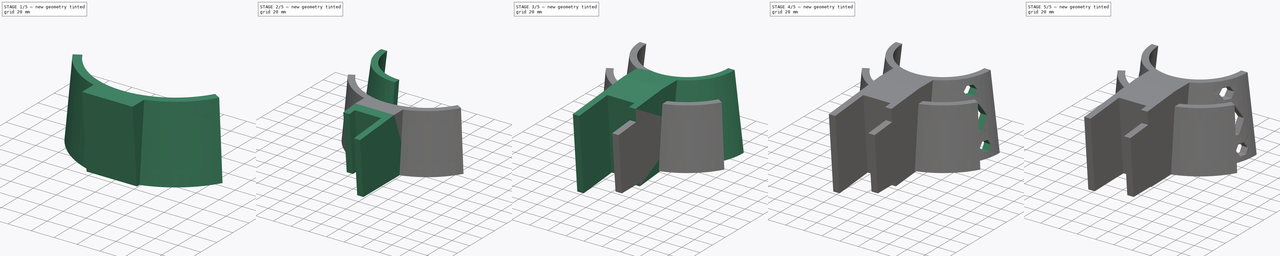
[diagram: build sequence overview — one tinted view per stage of 5, left to right]
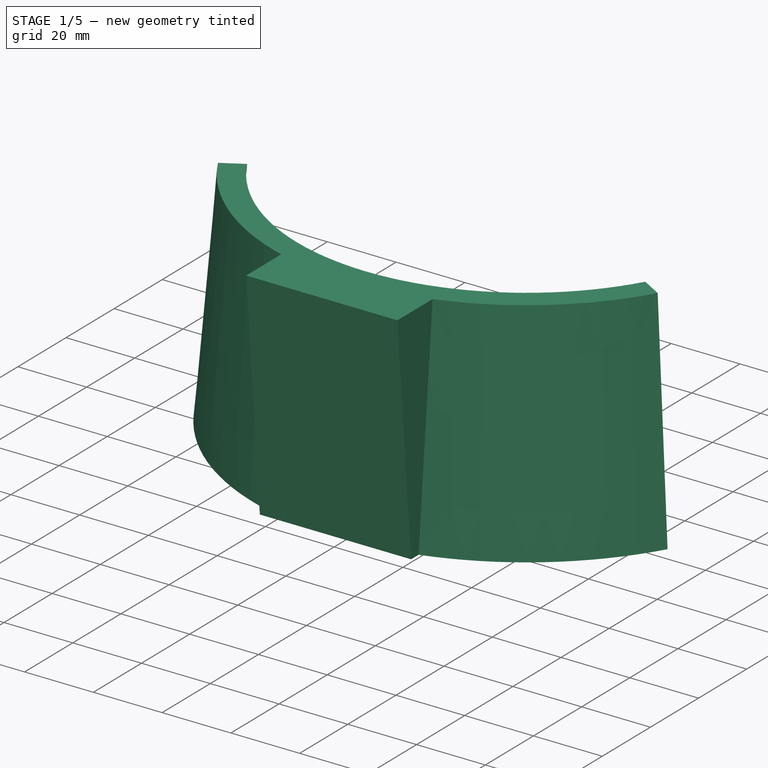
[diagram: stage 1 of 5 — iso view after this stage's code; geometry added in this stage tinted green]
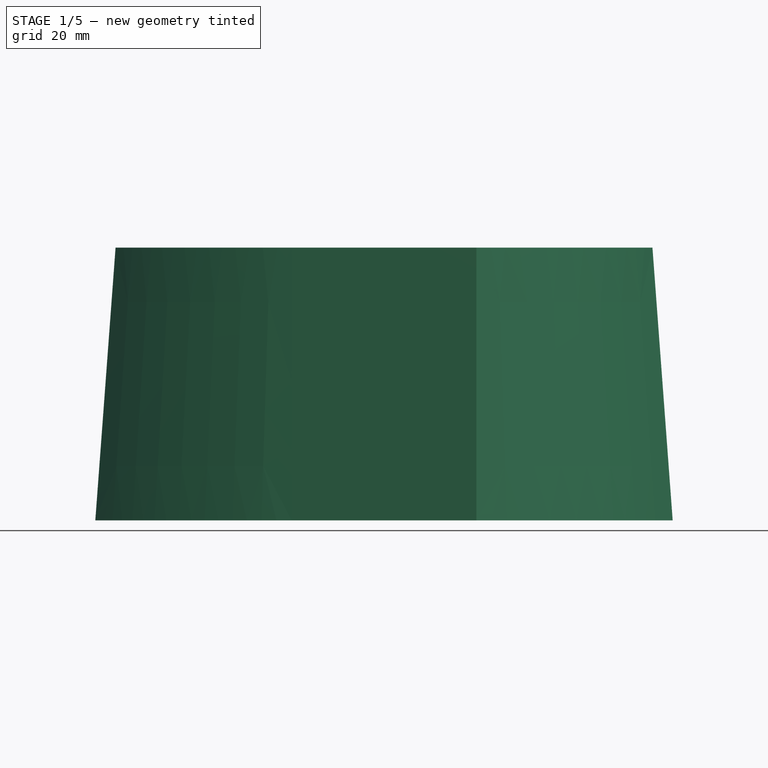
[diagram: stage 1 of 5 — front view after this stage's code; geometry added in this stage tinted green]
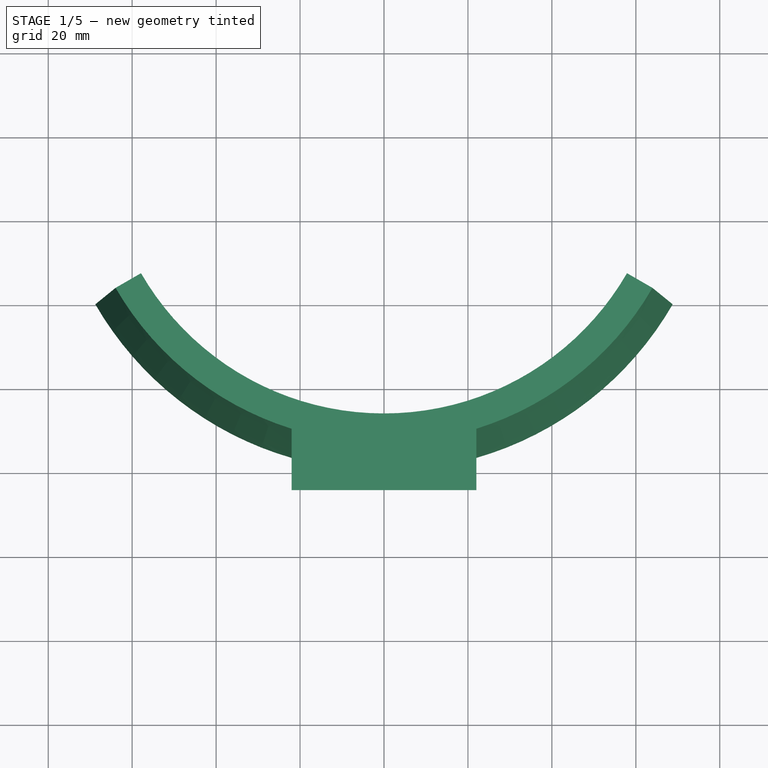
[diagram: stage 1 of 5 — top view after this stage's code; geometry added in this stage tinted green]
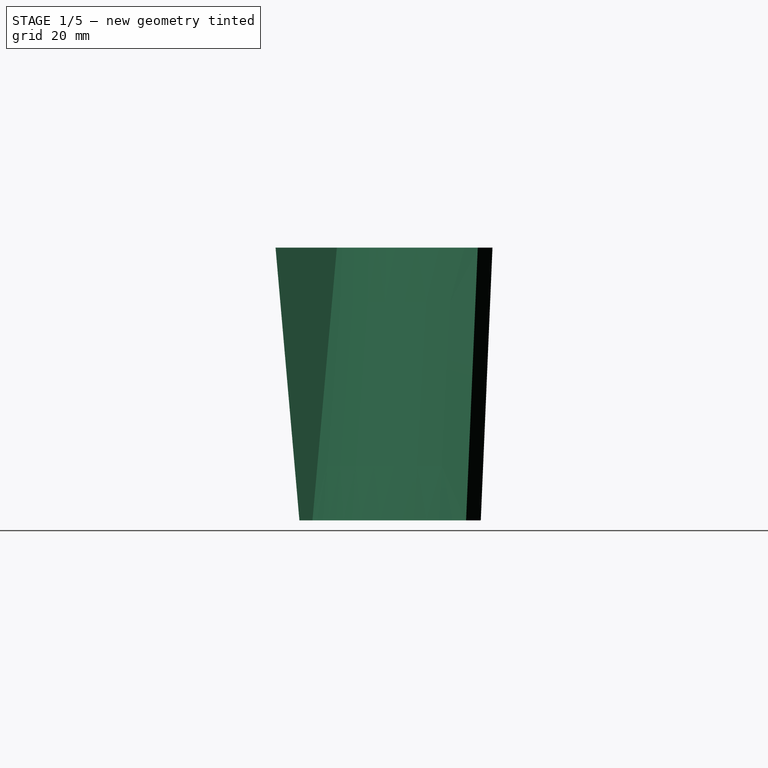
[diagram: stage 1 of 5 — right view after this stage's code; geometry added in this stage tinted green]
FCSTD DOCUMENT  (FreeCAD 1.0R39109 (Git))
Label: blahaj_holder
License: All rights reserved
LicenseURL: https://en.wikipedia.org/wiki/All_rights_reserved
objects: Sketcher::SketchObject×8, PartDesign::Pocket×8, PartDesign::Pad×6, PartDesign::Plane×5, PartDesign::Revolution×4, PartDesign::Fillet×3, PartDesign::Body×2, PartDesign::ShapeBinder×1
note: 87 computed .brp shape members not serialized (recipe doc carries the construction recipe); baked Part::Feature solids carry a one-line shape summary decoded from their .brp

FEATURE [Sketcher::SketchObject] Sketch004
  ArcFitTolerance = 1e-06
  AttachmentSupport = -> [YZ_Plane001]
  FullyConstrained = true
  MakeInternals = false
  MapMode = 5
  Placement = pos=(0,0,0) rot=(0.57735,0.57735,0.57735;2.0944rad)
  sketch-geometry (9):
    g0: LineSegment [constr] StartX=0 StartY=0 StartZ=0 EndX=0 EndY=65 EndZ=0
    g1: LineSegment [constr] StartX=0 StartY=65 StartZ=0 EndX=-66.85 EndY=65 EndZ=0
    g2: LineSegment [constr] StartX=0 StartY=0 StartZ=0 EndX=-72.42 EndY=0 EndZ=0
    g3: LineSegment StartX=-66.85 StartY=65 StartZ=0 EndX=-72.42 EndY=0 EndZ=0
    g4: LineSegment StartX=-72.42 StartY=0 StartZ=0 EndX=-79.42 EndY=0 EndZ=0
    g5: LineSegment StartX=-66.85 StartY=65 StartZ=0 EndX=-73.85 EndY=65 EndZ=0
    g6: LineSegment StartX=-73.85 StartY=65 StartZ=0 EndX=-79.42 EndY=0 EndZ=0
    g7: LineSegment StartX=-73.85 StartY=65 StartZ=0 EndX=-85.1068 EndY=65 EndZ=0
    g8: LineSegment StartX=-79.42 StartY=0 StartZ=0 EndX=-85.1068 EndY=65 EndZ=0
  constraints (24):
    c: Distance(g0) = 65
    c: Coincident(g0,g-1)
    c: PointOnObject(g0,g-2)
    c: Distance(g1) = 66.85
    c: Coincident(g1,g0)
    c: Horizontal(g1)
    c: Distance(g2) = 72.42
    c: Coincident(g2,g0)
    c: PointOnObject(g2,g-1)
    c: Coincident(g3,g1)
    c: Coincident(g3,g2)
    c: Distance(g4) = 7
    c: Coincident(g4,g2)
    c: PointOnObject(g4,g-1)
    c: Distance(g5) = 7
    c: Coincident(g5,g1)
    c: Horizontal(g5)
    c: Coincident(g6,g5)
    c: Coincident(g6,g4)
    c: Horizontal(g7)
    c: Coincident(g7,g5)
    c: Angle(g-1,g8) = 1.65806
    c: Coincident(g8,g4)
    c: Coincident(g7,g8)
FEATURE [PartDesign::Revolution] Revolution002
  Angle = 60
  Angle2 = 60
  Axis = (0,0,1)
  Base = (0,0,0)
  Placement = pos=(0,0,0) rot=(1,1,1;2.0944rad)
  Profile = -> Sketch004 [Edge6,Edge3,Edge1,Edge2]
  ReferenceAxis = -> Sketch004 [V_Axis]
  Refine = true
  Suppressed = false
  Type = 0
FEATURE [PartDesign::Revolution] Revolution003
  Angle = 60
  Angle2 = 60
  Axis = (0,0,1)
  Base = (0,0,0)
  BaseFeature = -> Revolution002
  Placement = pos=(0,0,0) rot=(1,1,1;2.0944rad)
  Profile = -> Sketch004 [Edge1,Edge6,Edge2,Edge3]
  ReferenceAxis = -> Sketch004 [V_Axis]
  Refine = true
  Reversed = true
  Suppressed = false
  Type = 0
FEATURE [PartDesign::Pad] Pad003
  BaseFeature = -> Revolution003
  Direction = (1,0,0)
  Length = 22
  Length2 = 10
  Placement = pos=(0,0,0) rot=(1,1,1;2.0944rad)
  Profile = -> Sketch004 [Edge1,Edge6,Edge5,Edge4,Edge2]
  ReferenceAxis = -> Sketch004 [N_Axis]
  Refine = true
  Suppressed = false
  Type = 0
FEATURE [PartDesign::Pad] Pad004
  BaseFeature = -> Pad003
  Direction = (1,0,0)
  Length = 22
  Length2 = 10
  Placement = pos=(0,0,0) rot=(1,1,1;2.0944rad)
  Profile = -> Sketch004 [Edge5,Edge4,Edge6,Edge1,Edge2]
  ReferenceAxis = -> Sketch004 [N_Axis]
  Refine = true
  Reversed = true
  Suppressed = false
  Type = 0
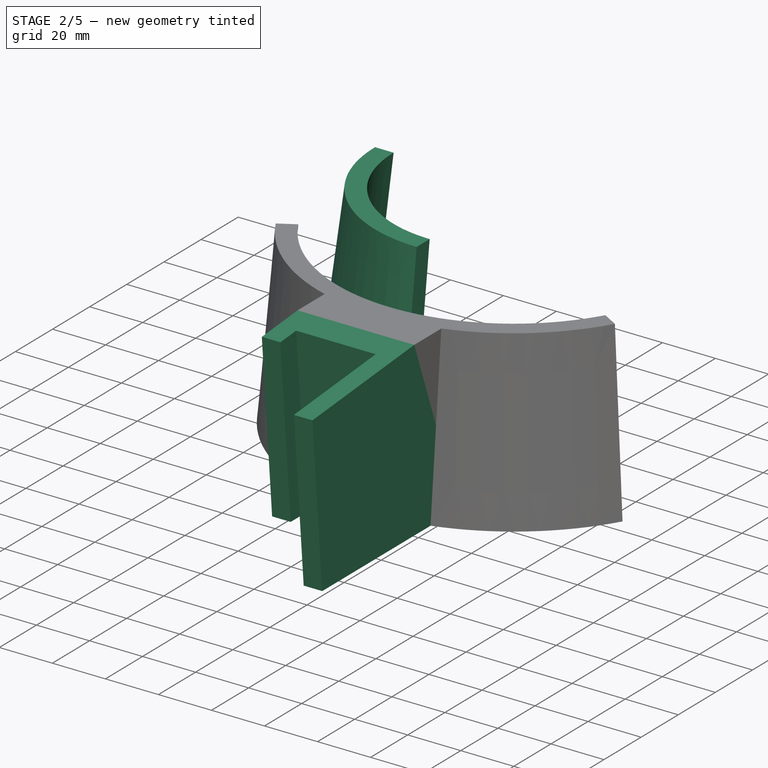
[diagram: stage 2 of 5 — iso view after this stage's code; geometry added in this stage tinted green]
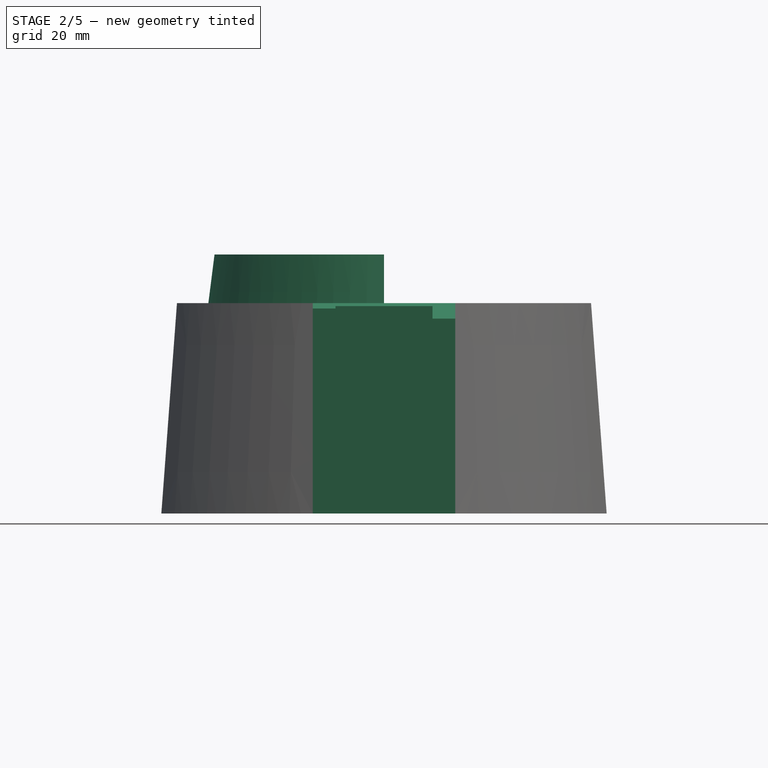
[diagram: stage 2 of 5 — front view after this stage's code; geometry added in this stage tinted green]
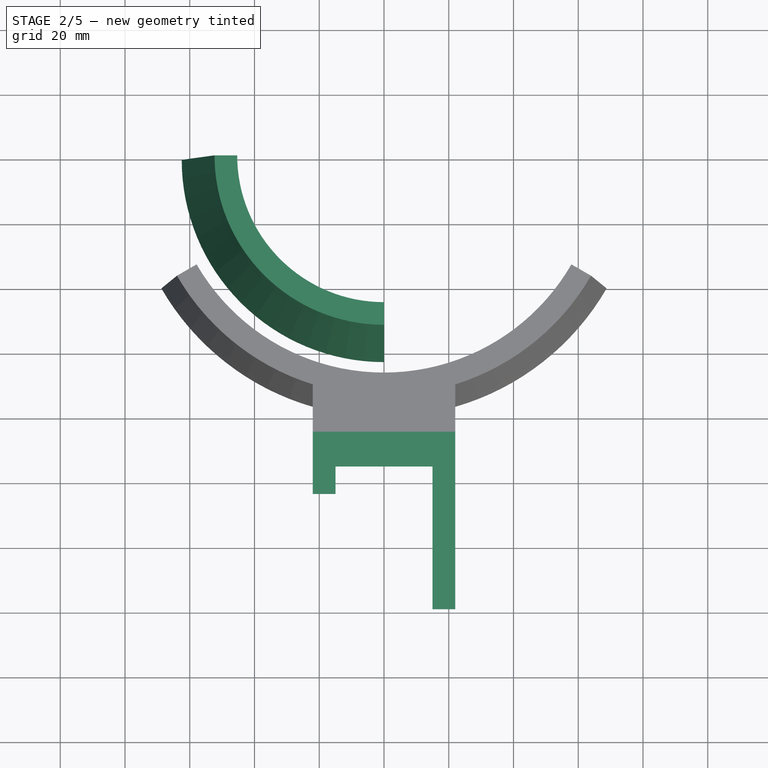
[diagram: stage 2 of 5 — top view after this stage's code; geometry added in this stage tinted green]
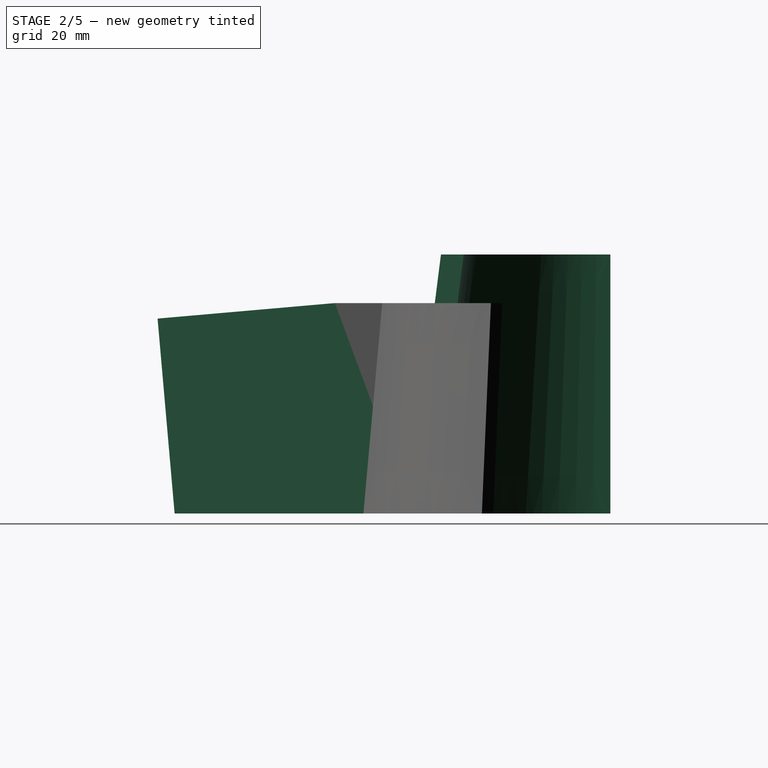
[diagram: stage 2 of 5 — right view after this stage's code; geometry added in this stage tinted green]
FEATURE [Sketcher::SketchObject] Sketch001
  ArcFitTolerance = 1e-06
  AttachmentSupport = -> [YZ_Plane]
  FullyConstrained = false
  MakeInternals = false
  MapMode = 5
  Placement = pos=(0,0,0) rot=(0.57735,0.57735,0.57735;2.0944rad)
  sketch-geometry (7):
    g0: LineSegment StartX=-45.3558 StartY=79.9996 StartZ=0 EndX=-55.4348 EndY=-5.85082e-05 EndZ=0
    g1: LineSegment [constr] StartX=0 StartY=0 StartZ=0 EndX=0 EndY=80 EndZ=0
    g2: LineSegment StartX=-55.4348 StartY=-5.85082e-05 StartZ=0 EndX=-62.49 EndY=-0.0018551 EndZ=0
    g3: LineSegment StartX=-52.3558 StartY=79.9996 StartZ=0 EndX=-45.3558 EndY=79.9996 EndZ=0
    g4: LineSegment StartX=-52.3558 StartY=79.9996 StartZ=0 EndX=-62.49 EndY=-0.0018551 EndZ=0
    g5: LineSegment StartX=-62.49 StartY=-0.0018551 StartZ=0 EndX=-69.4892 EndY=79.9996 EndZ=0
    g6: LineSegment StartX=-52.3558 StartY=79.9996 StartZ=0 EndX=-69.4892 EndY=79.9996 EndZ=0
  constraints (17):
    c: Distance(g-1,g0) = 55
    c: Distance(g1) = 80
    c: Coincident(g1,g-1)
    c: PointOnObject(g1,g-2)
    c: Distance(g1,g0) = 45
    c: Coincident(g0,g2)
    c: Coincident(g3,g0)
    c: Horizontal(g3)
    c: DistanceX(g3,g0) = 7
    c: Coincident(g4,g2)
    c: Coincident(g5,g2)
    c: Horizontal(g6)
    c: Coincident(g6,g3)
    c: DistanceX(g2,g-1) = 62.49
    c: Angle(g5,g-1) = 1.48353
    c: Coincident(g6,g5)
    c: Coincident(g3,g4)
FEATURE [PartDesign::Revolution] Revolution
  Angle = 90
  Angle2 = 60
  Axis = (0,0,1)
  Base = (0,0,0)
  Placement = pos=(0,0,0) rot=(1,1,1;2.0944rad)
  Profile = -> Sketch001 [Edge1,Edge3,Edge6,Edge2]
  ReferenceAxis = -> Sketch001 [V_Axis]
  Refine = true
  Reversed = true
  Suppressed = false
  Type = 0
FEATURE [PartDesign::Pad] Pad005
  BaseFeature = -> Pad004
  Direction = (-4e-16,-0.996195,-0.087156)
  Length = 55
  Length2 = 10
  Placement = pos=(0,0,0) rot=(1,1,1;2.0944rad)
  Profile = -> Pad004 [Face11]
  Refine = true
  Suppressed = false
  Type = 0
FEATURE [PartDesign::Plane] DatumPlane003
  AttachmentSupport = -> [Pad005]
  Length = 202.913
  MapMode = 5
  Placement = pos=(-1.88e-14,-6.29006,71.8956) rot=(0.043578,0.043578,-0.998099;1.5727rad)
  ResizeMode = 0
  Width = 168.578
FEATURE [Sketcher::SketchObject] Sketch005
  ArcFitTolerance = 1e-06
  AttachmentSupport = -> [Pad005]
  FullyConstrained = false
  MakeInternals = false
  MapMode = 5
  Placement = pos=(-1.88e-14,-6.29006,71.8956) rot=(0.043578,0.043578,-0.998099;1.5727rad)
  sketch-geometry (13):
    g0: LineSegment [constr] StartX=0 StartY=0 StartZ=0 EndX=208.347 EndY=0 EndZ=0
    g1: LineSegment [constr] StartX=89.9137 StartY=-22 StartZ=0 EndX=179.914 EndY=-22 EndZ=0
    g2: LineSegment [constr] StartX=179.914 StartY=-22 StartZ=0 EndX=179.914 EndY=22 EndZ=0
    g3: LineSegment [constr] StartX=179.914 StartY=22 StartZ=0 EndX=89.9137 EndY=22 EndZ=0
    g4: LineSegment [constr] StartX=89.9137 StartY=22 StartZ=0 EndX=89.9137 EndY=-22 EndZ=0
    g5: GeomPoint [constr] X=134.914 Y=0 Z=0
    g6: LineSegment StartX=89.9137 StartY=-15 StartZ=0 EndX=89.9137 EndY=15 EndZ=0
    g7: LineSegment StartX=89.9137 StartY=15 StartZ=0 EndX=134.914 EndY=15 EndZ=0
    g8: LineSegment StartX=134.914 StartY=15 StartZ=0 EndX=134.914 EndY=0 EndZ=0
    g9: LineSegment StartX=134.914 StartY=0 StartZ=0 EndX=134.914 EndY=-22 EndZ=0
    g10: LineSegment StartX=89.9137 StartY=-15 StartZ=0 EndX=98.4137 EndY=-15 EndZ=0
    g11: LineSegment StartX=98.4137 StartY=-15 StartZ=0 EndX=98.4137 EndY=-22 EndZ=0
    g12: LineSegment StartX=98.4137 StartY=-22 StartZ=0 EndX=134.914 EndY=-22 EndZ=0
  constraints (31):
    c: Horizontal(g0)
    c: Coincident(g0,g-1)
    c: Coincident(g1,g2)
    c: Coincident(g2,g3)
    c: Coincident(g3,g4)
    c: Coincident(g4,g1)
    c: Horizontal(g1)
    c: Horizontal(g3)
    c: Vertical(g2)
    c: Vertical(g4)
    c: Symmetric(g3,g1,g5)
    c: Distance(g2,g4) = 90
    c: Distance(g1,g3) = 44
    c: PointOnObject(g5,g0)
    c: PointOnObject(g6,g4)
    c: PointOnObject(g6,g4)
    c: Distance(g7) = 45
    c: Horizontal(g7)
    c: Coincident(g7,g6)
    c: Coincident(g8,g7)
    c: Coincident(g8,g5)
    c: Coincident(g9,g5)
    c: Symmetric(g1,g1,g9)
    c: Distance(g10) = 8.5
    c: Horizontal(g10)
    c: Coincident(g10,g6)
    c: Vertical(g11)
    c: Coincident(g11,g10)
    c: PointOnObject(g11,g1)
    c: Coincident(g12,g11)
    c: Coincident(g12,g9)
FEATURE [PartDesign::Pocket] Pocket006
  BaseFeature = -> Pad005
  Direction = (0,0.087156,-0.996195)
  Length = 66
  Length2 = 5
  Placement = pos=(0,0,0) rot=(1,1,1;2.0944rad)
  Profile = -> Sketch005 [Edge1,Edge7,Edge5,Vertex6,Edge6,Edge4,Edge3,Edge2]
  ReferenceAxis = -> Sketch005 [N_Axis]
  Refine = true
  Suppressed = false
  Type = 0
FEATURE [PartDesign::Plane] DatumPlane004
  AttachmentOffset = pos=(0,0,47) rot=(0,0,1;0rad)
  AttachmentSupport = -> [Pocket006]
  Length = 189.262
  MapMode = 5
  Placement = pos=(-69,1.37e-14,-1.57e-14) rot=(0.57735,0.57735,-0.57735;4.18879rad)
  ResizeMode = 0
  Width = 114.365
FEATURE [Sketcher::SketchObject] Sketch006
  ArcFitTolerance = 1e-06
  AttachmentSupport = -> [Pocket006]
  FullyConstrained = false
  MakeInternals = false
  MapMode = 5
  Placement = pos=(-22,1.37e-14,-1.57e-14) rot=(0.57735,0.57735,-0.57735;4.18879rad)
  sketch-geometry (4):
    g0: LineSegment StartX=0 StartY=0 StartZ=0 EndX=0 EndY=10.8511 EndZ=0
    g1: LineSegment StartX=0 StartY=10.8511 StartZ=0 EndX=-140.83 EndY=10.8511 EndZ=0
    g2: LineSegment StartX=-140.83 StartY=10.8511 StartZ=0 EndX=-140.83 EndY=0 EndZ=0
    g3: LineSegment StartX=-140.83 StartY=0 StartZ=0 EndX=0 EndY=0 EndZ=0
  constraints (9):
    c: Coincident(g0,g1)
    c: Coincident(g1,g2)
    c: Coincident(g2,g3)
    c: Coincident(g3,g0)
    c: Vertical(g0)
    c: Vertical(g2)
    c: Horizontal(g1)
    c: Horizontal(g3)
    c: Coincident(g0,g-1)
FEATURE [PartDesign::Pocket] Pocket007
  BaseFeature = -> Pocket006
  Direction = (1,0,0)
  Length = 100
  Length2 = 5
  Placement = pos=(0,0,0) rot=(1,1,1;2.0944rad)
  Profile = -> Sketch006
  ReferenceAxis = -> Sketch006 [N_Axis]
  Refine = true
  Suppressed = false
  Type = 0
FEATURE [PartDesign::Body] Body001  label="Belly_holder"
  AllowCompound = false
  Group = -> [Sketch004,Revolution002,Revolution003,Pad003,Pad004,Pad005,DatumPlane003,Sketch005,Pocket006,DatumPlane004,Sketch006,Pocket007]
  Origin = -> Origin001
  Tip = -> Pocket007
FEATURE [PartDesign::ShapeBinder] CopyPocket007
  Placement = pos=(0,0,0) rot=(0.57735,0.57735,0.57735;2.0944rad)
  TraceSupport = false
FEATURE [Sketcher::SketchObject] Sketch007
  ArcFitTolerance = 1e-06
  AttachmentSupport = -> [CopyPocket007]
  FullyConstrained = false
  MakeInternals = false
  MapMode = 5
  Placement = pos=(-1.73e-14,-89.5716,-7.83652) rot=(0.593426,0.593426,-0.543775;2.14549rad)
  sketch-geometry (7):
    g0: LineSegment StartX=-27.4069 StartY=44.6133 StartZ=0 EndX=-34.9069 EndY=57.6037 EndZ=0
    g1: LineSegment StartX=-34.9069 StartY=57.6037 StartZ=0 EndX=-49.9069 EndY=57.6037 EndZ=0
    g2: LineSegment StartX=-49.9069 StartY=57.6037 StartZ=0 EndX=-57.4069 EndY=44.6133 EndZ=0
    g3: LineSegment StartX=-57.4069 StartY=44.6133 StartZ=0 EndX=-49.9069 EndY=31.6229 EndZ=0
    g4: LineSegment StartX=-49.9069 StartY=31.6229 StartZ=0 EndX=-34.9069 EndY=31.6229 EndZ=0
    g5: LineSegment StartX=-34.9069 StartY=31.6229 StartZ=0 EndX=-27.4069 EndY=44.6133 EndZ=0
    g6: Circle [constr] CenterX=-42.4069 CenterY=44.6133 CenterZ=0 NormalX=0 NormalY=0 NormalZ=1 AngleXU=0 Radius=15
  constraints (14):
    c: Coincident(g0,g1)
    c: Coincident(g1,g2)
    c: Coincident(g2,g3)
    c: Coincident(g3,g4)
    c: Coincident(g4,g5)
    c: Coincident(g5,g0)
    c: Equal(g0, g1-g5) x5
    c: PointOnObject(g0,g6)
    c: PointOnObject(g1,g6)
    c: PointOnObject(g2,g6)
    c: PointOnObject(g3,g6)
    c: PointOnObject(g4,g6)
    c: PointOnObject(g5,g6)
    c: Radius(g6) = 15
FEATURE [PartDesign::Body] Body  label="Tailfin_holder"
  AllowCompound = false
  Group = -> [Sketch001,Revolution,Revolution001,Pad,Pad001,Pad002,DatumPlane,Sketch002,Pocket,DatumPlane001,Sketch,Pocket001,Pocket002,Pocket003,Pocket004,Fillet,Fillet001,Fillet002,DatumPlane002,Sketch003,Pocket005,CopyPocket007,Sketch007]
  Origin = -> Origin
  Tip = -> Pocket005
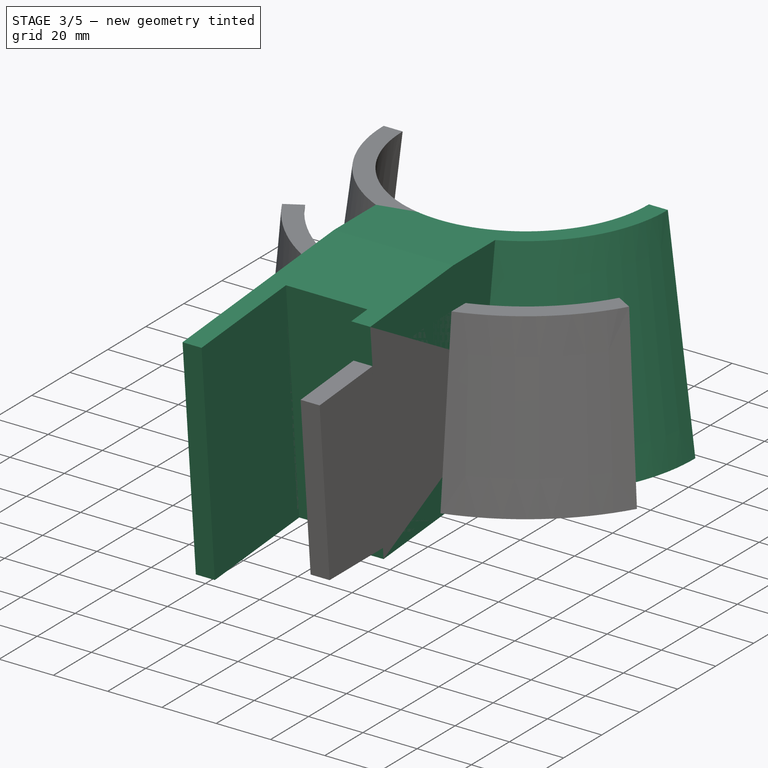
[diagram: stage 3 of 5 — iso view after this stage's code; geometry added in this stage tinted green]
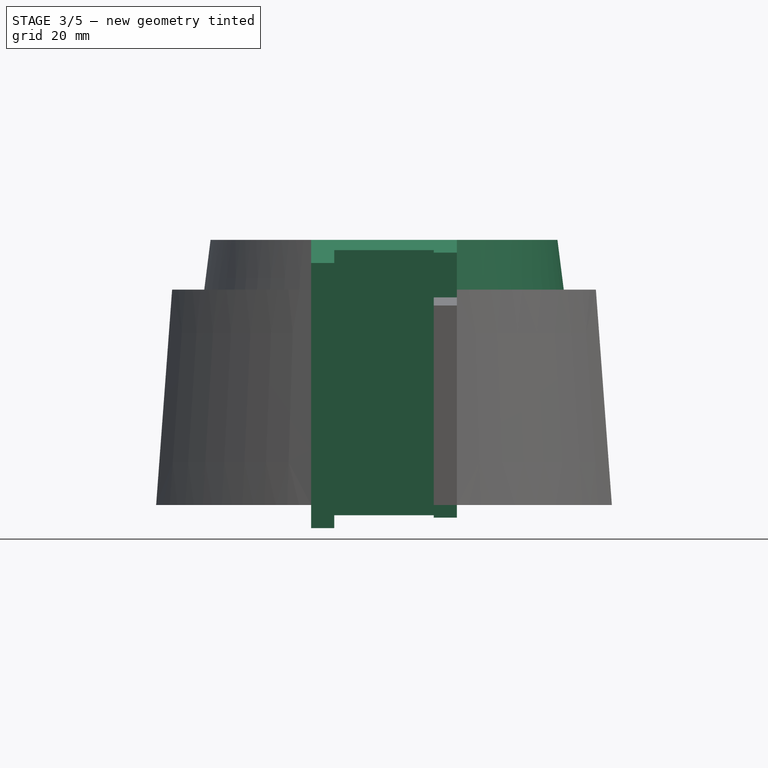
[diagram: stage 3 of 5 — front view after this stage's code; geometry added in this stage tinted green]
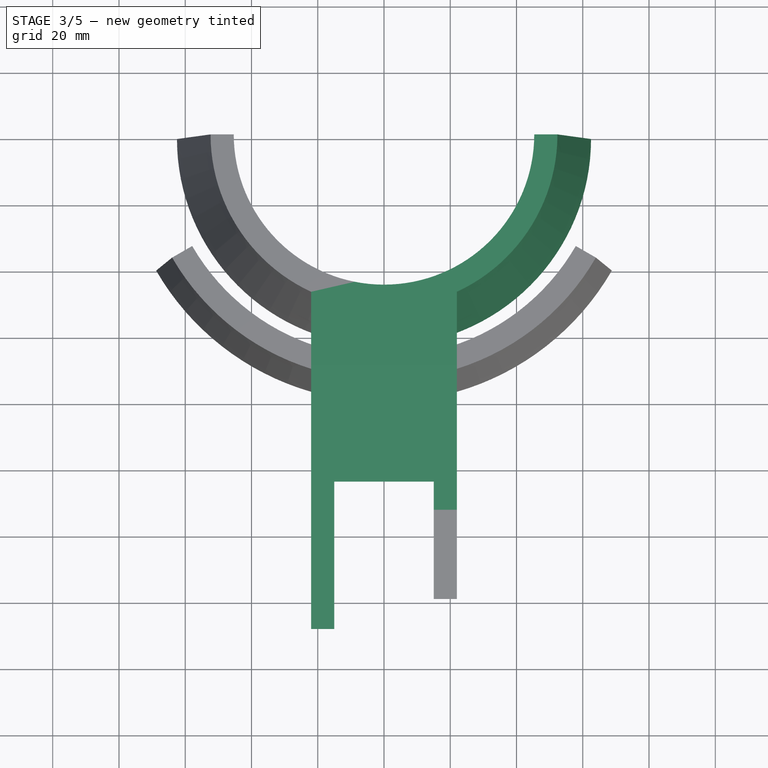
[diagram: stage 3 of 5 — top view after this stage's code; geometry added in this stage tinted green]
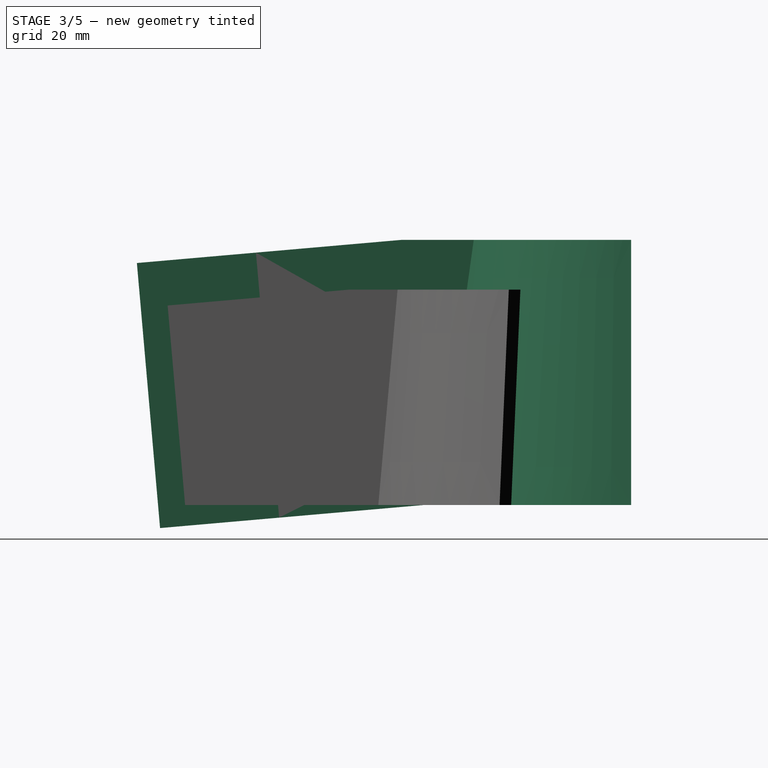
[diagram: stage 3 of 5 — right view after this stage's code; geometry added in this stage tinted green]
FEATURE [PartDesign::Revolution] Revolution001
  Angle = 90
  Angle2 = 60
  Axis = (0,0,1)
  Base = (0,0,0)
  BaseFeature = -> Revolution
  Placement = pos=(0,0,0) rot=(1,1,1;2.0944rad)
  Profile = -> Sketch001 [Edge3,Edge6,Edge1,Edge2]
  ReferenceAxis = -> Sketch001 [V_Axis]
  Refine = true
  Suppressed = false
  Type = 0
FEATURE [PartDesign::Pad] Pad
  BaseFeature = -> Revolution001
  Direction = (1,0,0)
  Length = 22
  Length2 = 10
  Placement = pos=(0,0,0) rot=(1,1,1;2.0944rad)
  Profile = -> Sketch001 [Edge2,Edge1,Edge5,Edge6,Edge4]
  ReferenceAxis = -> Sketch001 [N_Axis]
  Refine = true
  Suppressed = false
  Type = 0
FEATURE [PartDesign::Pad] Pad001
  BaseFeature = -> Pad
  Direction = (1,0,0)
  Length = 22
  Length2 = 10
  Placement = pos=(0,0,0) rot=(1,1,1;2.0944rad)
  Profile = -> Sketch001 [Edge1,Edge6,Edge5,Edge4,Edge2]
  ReferenceAxis = -> Sketch001 [N_Axis]
  Refine = true
  Reversed = true
  Suppressed = false
  Type = 0
FEATURE [PartDesign::Pad] Pad002
  BaseFeature = -> Pad001
  Direction = (-4e-16,-0.996195,-0.0871557)
  Length = 80
  Length2 = 10
  Placement = pos=(0,0,0) rot=(1,1,1;2.0944rad)
  Profile = -> Pad001 [Face14]
  Refine = true
  Suppressed = false
  Type = 0
FEATURE [PartDesign::Plane] DatumPlane
  AttachmentSupport = -> [Pad002]
  Length = 213.309
  MapMode = 5
  Placement = pos=(-1.29e-14,-7.47374,85.4253) rot=(0.043578,0.043578,-0.998099;1.5727rad)
  ResizeMode = 0
  Width = 154.867
FEATURE [Sketcher::SketchObject] Sketch002
  ArcFitTolerance = 1e-06
  AttachmentSupport = -> [DatumPlane]
  FullyConstrained = false
  MakeInternals = false
  MapMode = 5
  Placement = pos=(-1.29e-14,-7.47374,85.4253) rot=(0.043578,0.043578,-0.998099;1.5727rad)
  sketch-geometry (12):
    g0: LineSegment [constr] StartX=97.677 StartY=-22 StartZ=0 EndX=187.677 EndY=-22 EndZ=0
    g1: LineSegment [constr] StartX=187.677 StartY=-22 StartZ=0 EndX=187.677 EndY=22 EndZ=0
    g2: LineSegment [constr] StartX=187.677 StartY=22 StartZ=0 EndX=97.677 EndY=22 EndZ=0
    g3: LineSegment [constr] StartX=97.677 StartY=22 StartZ=0 EndX=97.677 EndY=-22 EndZ=0
    g4: GeomPoint [constr] X=142.677 Y=0 Z=0
    g5: LineSegment StartX=97.677 StartY=-15 StartZ=0 EndX=142.677 EndY=-15 EndZ=0
    g6: LineSegment StartX=97.677 StartY=15 StartZ=0 EndX=106.177 EndY=15 EndZ=0
    g7: LineSegment StartX=97.677 StartY=15 StartZ=0 EndX=97.677 EndY=-15 EndZ=0
    g8: LineSegment StartX=106.177 StartY=15 StartZ=0 EndX=106.177 EndY=22 EndZ=0
    g9: LineSegment StartX=142.677 StartY=0 StartZ=0 EndX=142.677 EndY=22 EndZ=0
    g10: LineSegment StartX=106.177 StartY=22 StartZ=0 EndX=142.677 EndY=22 EndZ=0
    g11: LineSegment StartX=142.677 StartY=0 StartZ=0 EndX=142.677 EndY=-15 EndZ=0
  constraints (30):
    c: Coincident(g0,g1)
    c: Coincident(g1,g2)
    c: Coincident(g2,g3)
    c: Coincident(g3,g0)
    c: Horizontal(g0)
    c: Horizontal(g2)
    c: Vertical(g1)
    c: Vertical(g3)
    c: Symmetric(g2,g0,g4)
    c: Distance(g1,g3) = 90
    c: Distance(g0,g2) = 44
    c: PointOnObject(g4,g-1)
    c: Horizontal(g5)
    c: PointOnObject(g5,g3)
    c: Distance(g0,g5) = 7
    c: Horizontal(g6)
    c: PointOnObject(g6,g3)
    c: Distance(g2,g6) = 7
    c: Coincident(g7,g6)
    c: Coincident(g7,g5)
    c: Vertical(g8)
    c: PointOnObject(g8,g2)
    c: Distance(g3,g8) = 8.5
    c: Coincident(g9,g4)
    c: Coincident(g10,g8)
    c: Symmetric(g2,g2,g10)
    c: Coincident(g6,g8)
    c: Coincident(g11,g4)
    c: Coincident(g5,g11)
    c: Coincident(g9,g10)
FEATURE [PartDesign::Pocket] Pocket
  BaseFeature = -> Pad002
  Direction = (0,0.0871557,-0.996195)
  Length = 81
  Length2 = 5
  Placement = pos=(0,0,0) rot=(1,1,1;2.0944rad)
  Profile = -> Sketch002 [Edge5,Vertex6,Edge7,Edge6,Edge1,Edge2,Edge4,Edge3]
  ReferenceAxis = -> Sketch002 [N_Axis]
  Refine = true
  Suppressed = false
  Type = 0
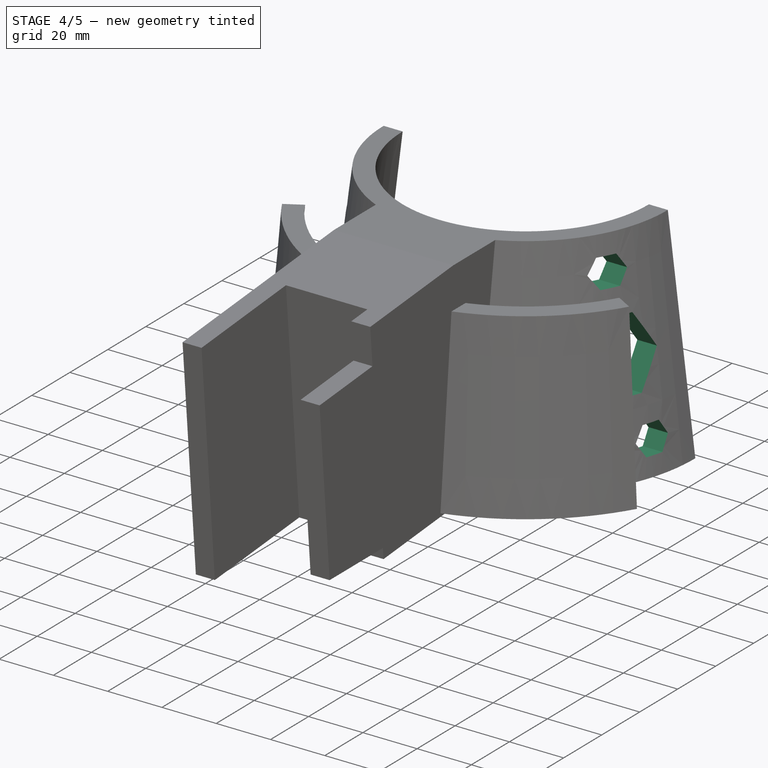
[diagram: stage 4 of 5 — iso view after this stage's code; geometry added in this stage tinted green]
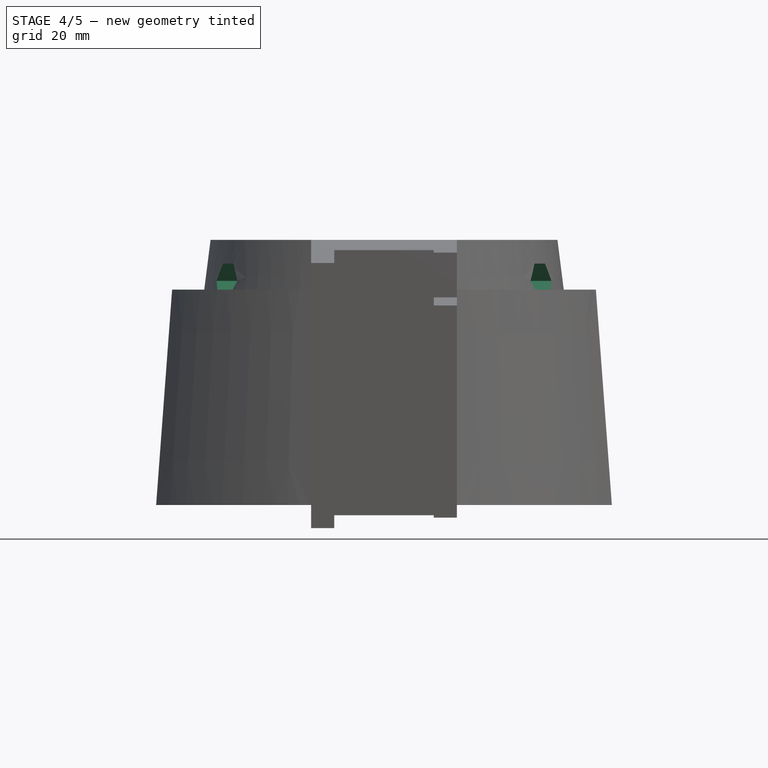
[diagram: stage 4 of 5 — front view after this stage's code; geometry added in this stage tinted green]
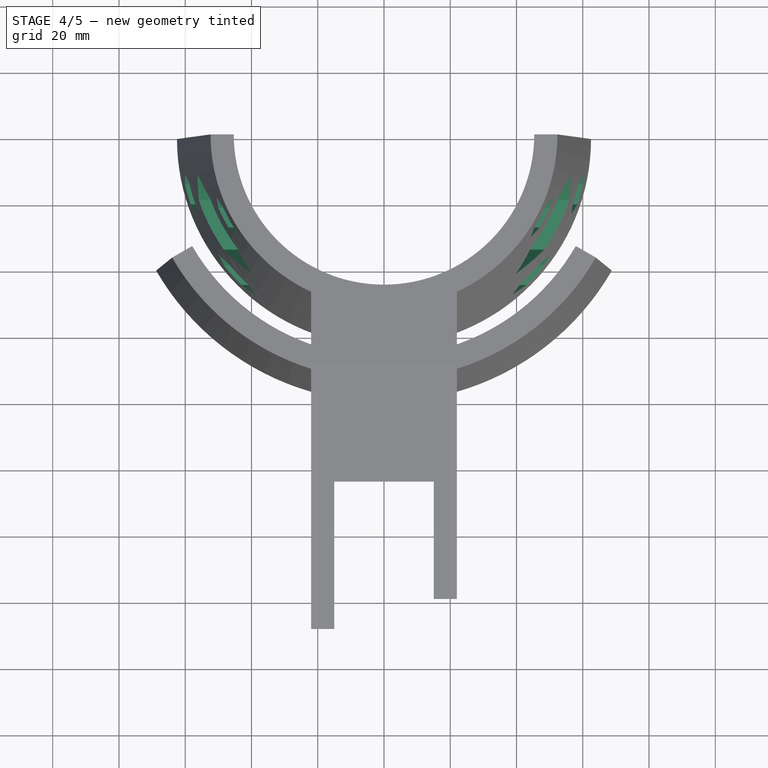
[diagram: stage 4 of 5 — top view after this stage's code; geometry added in this stage tinted green]
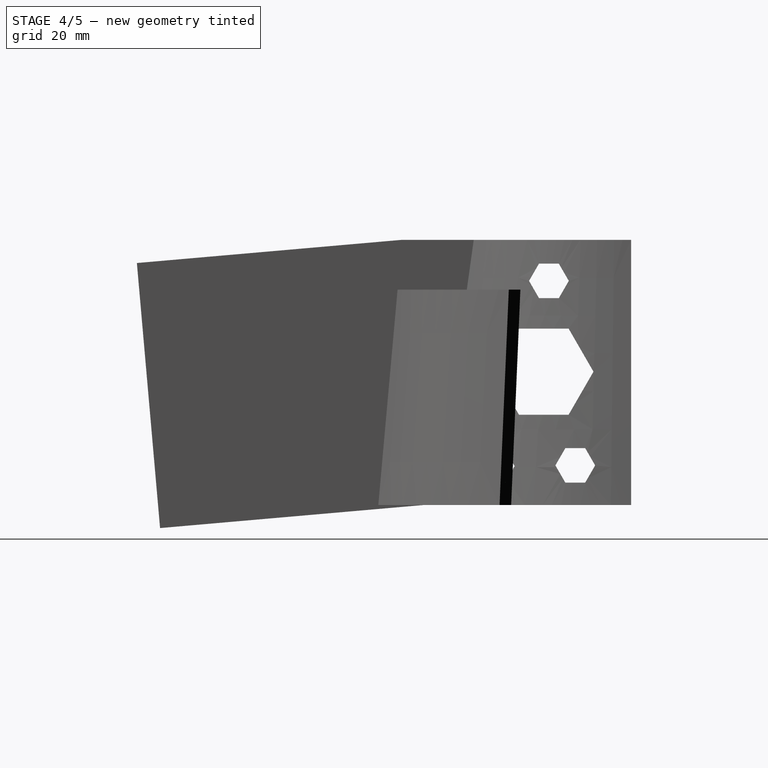
[diagram: stage 4 of 5 — right view after this stage's code; geometry added in this stage tinted green]
FEATURE [PartDesign::Plane] DatumPlane001
  AttachmentOffset = pos=(0,0,43) rot=(0,0,1;0rad)
  AttachmentSupport = -> [Pocket]
  Length = 201.688
  MapMode = 5
  Placement = pos=(-65,9e-15,-1.06e-14) rot=(0.57735,0.57735,-0.57735;4.18879rad)
  ResizeMode = 0
  Width = 132.08
FEATURE [Sketcher::SketchObject] Sketch
  ArcFitTolerance = 1e-06
  AttachmentSupport = -> [DatumPlane001]
  FullyConstrained = false
  MakeInternals = false
  MapMode = 5
  Placement = pos=(-65,9e-15,-1.06e-14) rot=(0.57735,0.57735,-0.57735;4.18879rad)
  sketch-geometry (28):
    g0: LineSegment StartX=-10.8584 StartY=-11.9464 StartZ=0 EndX=-13.8584 EndY=-6.75024 EndZ=0
    g1: LineSegment StartX=-13.8584 StartY=-6.75024 StartZ=0 EndX=-19.8584 EndY=-6.75024 EndZ=0
    g2: LineSegment StartX=-19.8584 StartY=-6.75024 StartZ=0 EndX=-22.8584 EndY=-11.9464 EndZ=0
    g3: LineSegment StartX=-22.8584 StartY=-11.9464 StartZ=0 EndX=-19.8584 EndY=-17.1425 EndZ=0
    g4: LineSegment StartX=-19.8584 StartY=-17.1425 StartZ=0 EndX=-13.8584 EndY=-17.1425 EndZ=0
    g5: LineSegment StartX=-13.8584 StartY=-17.1425 StartZ=0 EndX=-10.8584 EndY=-11.9464 EndZ=0
    g6: Circle [constr] CenterX=-16.8584 CenterY=-11.9464 CenterZ=0 NormalX=0 NormalY=0 NormalZ=1 AngleXU=0 Radius=6
    g7: LineSegment StartX=-18.8145 StartY=-67.6393 StartZ=0 EndX=-21.8145 EndY=-62.4431 EndZ=0
    g8: LineSegment StartX=-21.8145 StartY=-62.4431 StartZ=0 EndX=-27.8145 EndY=-62.4431 EndZ=0
    g9: LineSegment StartX=-27.8145 StartY=-62.4431 StartZ=0 EndX=-30.8145 EndY=-67.6393 EndZ=0
    g10: LineSegment StartX=-30.8145 StartY=-67.6393 StartZ=0 EndX=-27.8145 EndY=-72.8354 EndZ=0
    g11: LineSegment StartX=-27.8145 StartY=-72.8354 StartZ=0 EndX=-21.8145 EndY=-72.8354 EndZ=0
    g12: LineSegment StartX=-21.8145 StartY=-72.8354 StartZ=0 EndX=-18.8145 EndY=-67.6393 EndZ=0
    g13: Circle [constr] CenterX=-24.8145 CenterY=-67.6393 CenterZ=0 NormalX=0 NormalY=0 NormalZ=1 AngleXU=0 Radius=6
    g14: LineSegment StartX=-11.3616 StartY=-40.2348 StartZ=0 EndX=-18.8616 EndY=-27.2445 EndZ=0
    g15: LineSegment StartX=-18.8616 StartY=-27.2445 StartZ=0 EndX=-33.8616 EndY=-27.2445 EndZ=0
    g16: LineSegment StartX=-33.8616 StartY=-27.2445 StartZ=0 EndX=-41.3616 EndY=-40.2348 EndZ=0
    g17: LineSegment StartX=-41.3616 StartY=-40.2348 StartZ=0 EndX=-33.8616 EndY=-53.2252 EndZ=0
    g18: LineSegment StartX=-33.8616 StartY=-53.2252 StartZ=0 EndX=-18.8616 EndY=-53.2252 EndZ=0
    g19: LineSegment StartX=-18.8616 StartY=-53.2252 StartZ=0 EndX=-11.3616 EndY=-40.2348 EndZ=0
    g20: Circle [constr] CenterX=-26.3616 CenterY=-40.2348 CenterZ=0 NormalX=0 NormalY=0 NormalZ=1 AngleXU=0 Radius=15
    g21: LineSegment StartX=-35.1688 StartY=-11.7254 StartZ=0 EndX=-38.1688 EndY=-6.52923 EndZ=0
    g22: LineSegment StartX=-38.1688 StartY=-6.52923 StartZ=0 EndX=-44.1688 EndY=-6.52923 EndZ=0
    g23: LineSegment StartX=-44.1688 StartY=-6.52923 StartZ=0 EndX=-47.1688 EndY=-11.7254 EndZ=0
    g24: LineSegment StartX=-47.1688 StartY=-11.7254 StartZ=0 EndX=-44.1688 EndY=-16.9215 EndZ=0
    g25: LineSegment StartX=-44.1688 StartY=-16.9215 StartZ=0 EndX=-38.1688 EndY=-16.9215 EndZ=0
    g26: LineSegment StartX=-38.1688 StartY=-16.9215 StartZ=0 EndX=-35.1688 EndY=-11.7254 EndZ=0
    g27: Circle [constr] CenterX=-41.1688 CenterY=-11.7254 CenterZ=0 NormalX=0 NormalY=0 NormalZ=1 AngleXU=0 Radius=6
  constraints (56):
    c: Coincident(g0,g1)
    c: Coincident(g1,g2)
    c: Coincident(g2,g3)
    c: Coincident(g3,g4)
    c: Coincident(g4,g5)
    c: Coincident(g5,g0)
    c: Equal(g0, g1-g5) x5
    c: PointOnObject(g0,g6)
    c: PointOnObject(g1,g6)
    c: PointOnObject(g2,g6)
    c: PointOnObject(g3,g6)
    c: PointOnObject(g4,g6)
    c: PointOnObject(g5,g6)
    c: Radius(g6) = 6
    c: Coincident(g7,g8)
    c: Coincident(g8,g9)
    c: Coincident(g9,g10)
    c: Coincident(g10,g11)
    c: Coincident(g11,g12)
    c: Coincident(g12,g7)
    c: Equal(g7, g8-g12) x5
    c: PointOnObject(g7,g13)
    c: PointOnObject(g8,g13)
    c: PointOnObject(g9,g13)
    c: PointOnObject(g10,g13)
    c: PointOnObject(g11,g13)
    c: PointOnObject(g12,g13)
    c: Radius(g13) = 6
    c: Coincident(g14,g15)
    c: Coincident(g15,g16)
    c: Coincident(g16,g17)
    c: Coincident(g17,g18)
    c: Coincident(g18,g19)
    c: Coincident(g19,g14)
    c: Equal(g14, g15-g19) x5
    c: PointOnObject(g14,g20)
    c: PointOnObject(g15,g20)
    c: PointOnObject(g16,g20)
    c: PointOnObject(g17,g20)
    c: PointOnObject(g18,g20)
    c: PointOnObject(g19,g20)
    c: Radius(g20) = 15
    c: Coincident(g21,g22)
    c: Coincident(g22,g23)
    c: Coincident(g23,g24)
    c: Coincident(g24,g25)
    c: Coincident(g25,g26)
    c: Coincident(g26,g21)
    c: Equal(g21, g22-g26) x5
    c: PointOnObject(g21,g27)
    c: PointOnObject(g22,g27)
    c: PointOnObject(g23,g27)
    c: PointOnObject(g24,g27)
    c: PointOnObject(g25,g27)
    c: PointOnObject(g26,g27)
    c: Radius(g27) = 6
FEATURE [PartDesign::Pocket] Pocket001
  BaseFeature = -> Pocket
  Direction = (1,0,0)
  Length = 118
  Length2 = 5
  Placement = pos=(0,0,0) rot=(1,1,1;2.0944rad)
  Profile = -> Sketch [Edge24,Edge19,Edge20,Edge21,Edge22,Edge23]
  ReferenceAxis = -> Sketch [N_Axis]
  Refine = true
  Suppressed = false
  Type = 0
FEATURE [PartDesign::Pocket] Pocket002
  BaseFeature = -> Pocket001
  Direction = (1,0,0)
  Length = 131
  Length2 = 5
  Placement = pos=(0,0,0) rot=(1,1,1;2.0944rad)
  Profile = -> Sketch [Edge5,Edge6,Edge1,Edge2,Edge3,Edge4]
  ReferenceAxis = -> Sketch [N_Axis]
  Refine = true
  Suppressed = false
  Type = 0
FEATURE [PartDesign::Pocket] Pocket003
  BaseFeature = -> Pocket002
  Direction = (1,0,0)
  Length = 133
  Length2 = 5
  Placement = pos=(0,0,0) rot=(1,1,1;2.0944rad)
  Profile = -> Sketch [Edge14,Edge13,Edge15,Edge16,Edge17,Edge18]
  ReferenceAxis = -> Sketch [N_Axis]
  Refine = true
  Suppressed = false
  Type = 0
FEATURE [PartDesign::Pocket] Pocket004
  BaseFeature = -> Pocket003
  Direction = (1,0,0)
  Length = 132
  Length2 = 5
  Placement = pos=(0,0,0) rot=(1,1,1;2.0944rad)
  Profile = -> Sketch [Edge7,Edge8,Edge9,Edge10,Edge11,Edge12]
  ReferenceAxis = -> Sketch [N_Axis]
  Refine = true
  Suppressed = false
  Type = 0
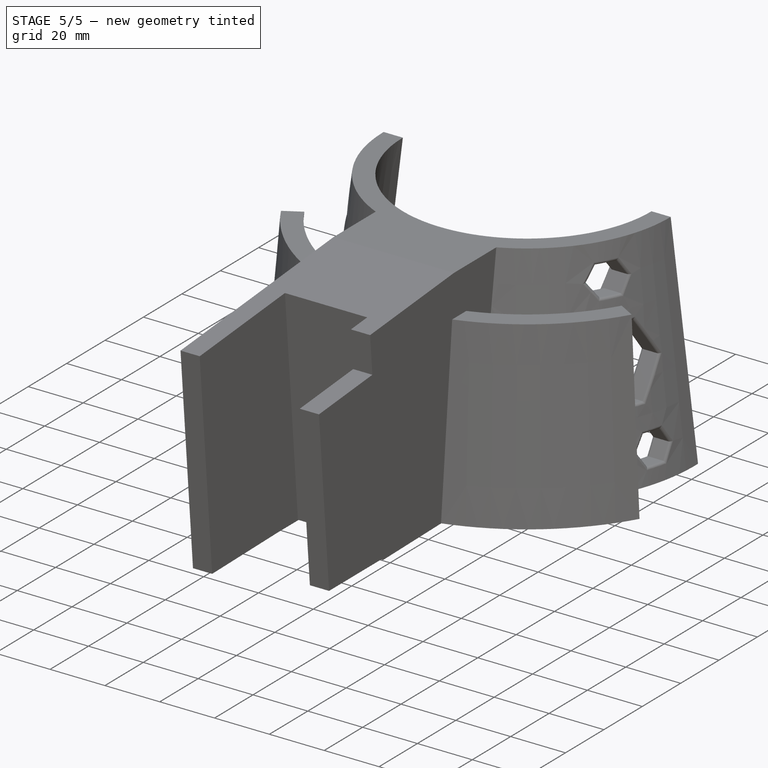
[diagram: stage 5 of 5 — iso view after this stage's code; geometry added in this stage tinted green]
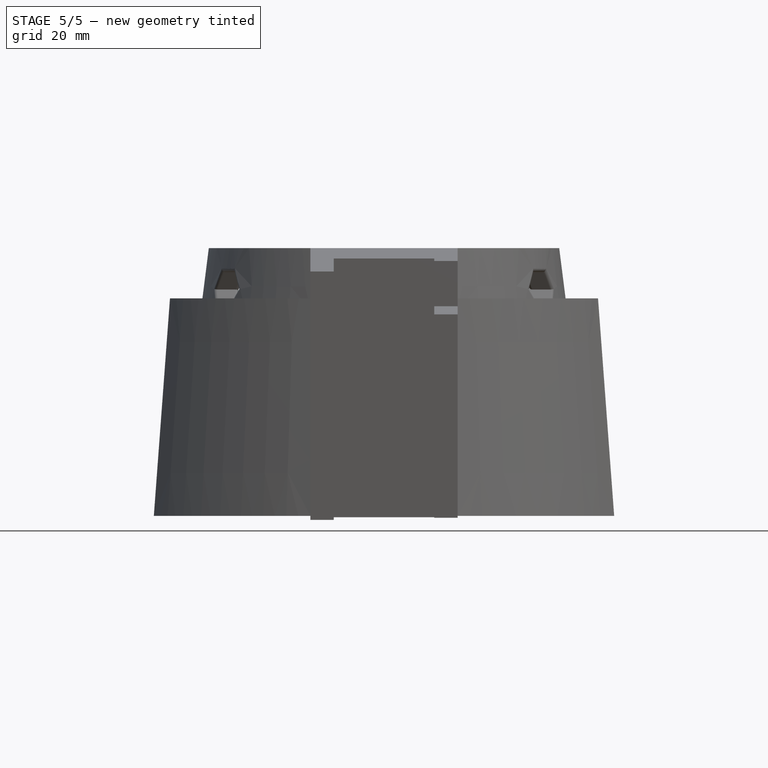
[diagram: stage 5 of 5 — front view after this stage's code; geometry added in this stage tinted green]
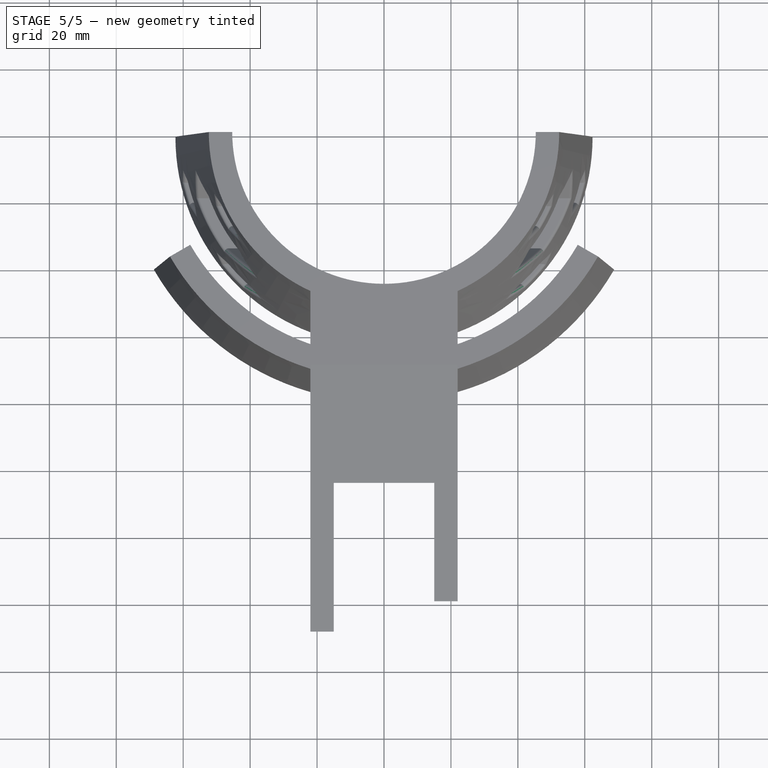
[diagram: stage 5 of 5 — top view after this stage's code; geometry added in this stage tinted green]
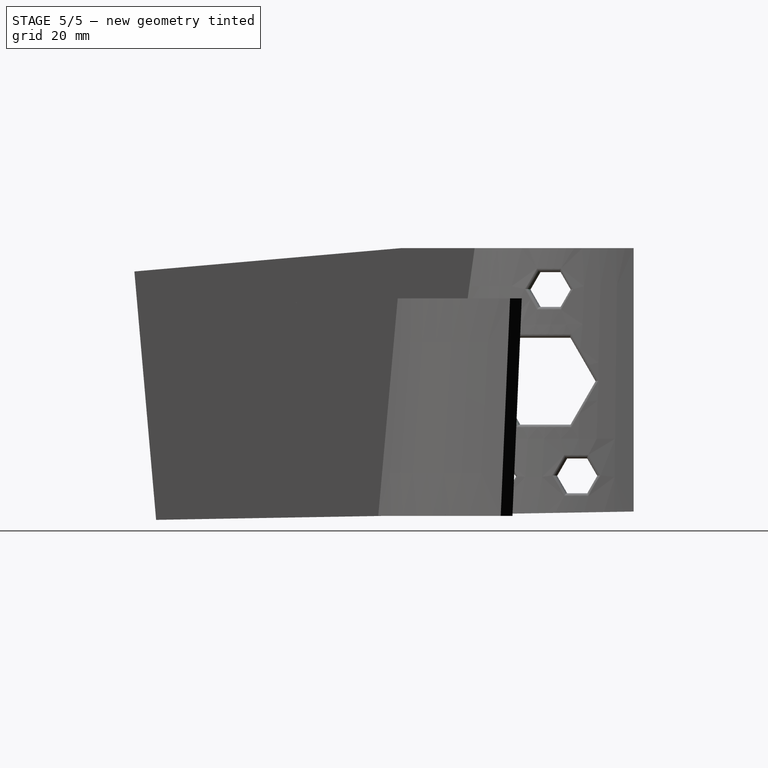
[diagram: stage 5 of 5 — right view after this stage's code; geometry added in this stage tinted green]
FEATURE [PartDesign::Fillet] Fillet
  Base = -> Pocket004 [Edge123,Edge125,Edge126,Edge124,Edge121,Edge122,Edge150,Edge152,Edge149,Edge151,Edge153,Edge154,Edge156,Edge158,Edge160,Edge159,Edge155,Edge157,Edge166,Edge163,Edge165,Edge164,Edge161,Edge162,Edge144,Edge145,Edge146,Edge147,Edge148,Edge131,Edge132,Edge130,Edge128,Edge127,Edge129,Edge137,Edge135,Edge133,Edge134,Edge136,+7 more]
  BaseFeature = -> Pocket004
  Placement = pos=(0,0,0) rot=(1,1,1;2.0944rad)
  Radius = 1
  Refine = true
  SupportTransform = false
  Suppressed = false
  UseAllEdges = false
FEATURE [PartDesign::Fillet] Fillet001
  Base = -> Fillet [Edge197,Edge199,Edge201,Edge200,Edge198,Edge196,Edge205,Edge206,Edge207,Edge204,Edge202,Edge203,Edge192,Edge190,Edge191,Edge193,Edge195,Edge194,Edge185,Edge184,Edge189,Edge188,Edge187,Edge186]
  BaseFeature = -> Fillet
  Placement = pos=(0,0,0) rot=(1,1,1;2.0944rad)
  Radius = 1
  Refine = true
  SupportTransform = false
  Suppressed = false
  UseAllEdges = false
FEATURE [PartDesign::Fillet] Fillet002
  Base = -> Fillet001 [Edge146,Edge144,Edge149,Edge154,Edge152,Edge150,Edge212,Edge214,Edge213,Edge211,Edge209,Edge210,Edge197,Edge198,Edge199,Edge200,Edge201,Edge202,Edge206,Edge208,Edge207,Edge205,Edge203,Edge204]
  BaseFeature = -> Fillet001
  Placement = pos=(0,0,0) rot=(1,1,1;2.0944rad)
  Radius = 1
  Refine = true
  SupportTransform = false
  Suppressed = false
  UseAllEdges = false
FEATURE [PartDesign::Plane] DatumPlane002
  AttachmentOffset = pos=(0,0,44) rot=(0,0,1;0.017453rad)
  AttachmentSupport = -> [Fillet002]
  Length = 204.024
  MapMode = 5
  Placement = pos=(66,-9.7e-15,1.85e-14) rot=(0.58068,0.570633,0.58068;2.1045rad)
  ResizeMode = 0
  Width = 135.641
FEATURE [Sketcher::SketchObject] Sketch003
  ArcFitTolerance = 1e-06
  AttachmentSupport = -> [DatumPlane002]
  FullyConstrained = false
  MakeInternals = false
  MapMode = 5
  Placement = pos=(66,-9.7e-15,1.85e-14) rot=(0.58068,0.570633,0.58068;2.1045rad)
  sketch-geometry (12):
    g0: LineSegment StartX=-150.318 StartY=74.7674 StartZ=0 EndX=-150.318 EndY=1.29218 EndZ=0
    g1: LineSegment StartX=-150.318 StartY=1.29218 StartZ=0 EndX=4.10037 EndY=1.29218 EndZ=0
    g2: LineSegment StartX=4.10037 StartY=1.29218 StartZ=0 EndX=4.10037 EndY=74.7674 EndZ=0
    g3: LineSegment StartX=4.10037 StartY=74.7674 StartZ=0 EndX=-150.318 EndY=74.7674 EndZ=0
    g4: LineSegment StartX=-150.318 StartY=74.7674 StartZ=0 EndX=4.11007 EndY=74.7674 EndZ=0
    g5: LineSegment StartX=4.11007 StartY=74.7674 StartZ=0 EndX=4.11007 EndY=84.6674 EndZ=0
    g6: LineSegment StartX=4.11007 StartY=84.6674 StartZ=0 EndX=-150.318 EndY=84.6674 EndZ=0
    g7: LineSegment StartX=-150.318 StartY=84.6674 StartZ=0 EndX=-150.318 EndY=74.7674 EndZ=0
    g8: LineSegment StartX=-150.318 StartY=1.29218 StartZ=0 EndX=-150.318 EndY=-6.6337 EndZ=0
    g9: LineSegment StartX=-150.318 StartY=-6.6337 StartZ=0 EndX=3.85259 EndY=-6.6337 EndZ=0
    g10: LineSegment StartX=3.85259 StartY=-6.6337 StartZ=0 EndX=3.85259 EndY=1.29218 EndZ=0
    g11: LineSegment StartX=3.85259 StartY=1.29218 StartZ=0 EndX=-150.318 EndY=1.29218 EndZ=0
  constraints (26):
    c: Coincident(g0,g1)
    c: Coincident(g1,g2)
    c: Coincident(g2,g3)
    c: Coincident(g3,g0)
    c: Vertical(g0)
    c: Vertical(g2)
    c: Horizontal(g1)
    c: Horizontal(g3)
    c: Coincident(g4,g5)
    c: Coincident(g5,g6)
    c: Coincident(g6,g7)
    c: Coincident(g7,g4)
    c: Horizontal(g4)
    c: Horizontal(g6)
    c: Vertical(g5)
    c: Vertical(g7)
    c: Coincident(g4,g0)
    c: Coincident(g8,g9)
    c: Coincident(g9,g10)
    c: Coincident(g10,g11)
    c: Coincident(g11,g8)
    c: Vertical(g8)
    c: Vertical(g10)
    c: Horizontal(g9)
    c: Horizontal(g11)
    c: Coincident(g8,g0)
FEATURE [PartDesign::Pocket] Pocket005
  BaseFeature = -> Fillet002
  Direction = (-1,1e-16,-1e-16)
  Length = 142
  Length2 = 5
  Placement = pos=(0,0,0) rot=(1,1,1;2.0944rad)
  Profile = -> Sketch003 [Edge3,Edge5,Edge4,Edge2]
  ReferenceAxis = -> Sketch003 [N_Axis]
  Refine = true
  Suppressed = false
  Type = 0
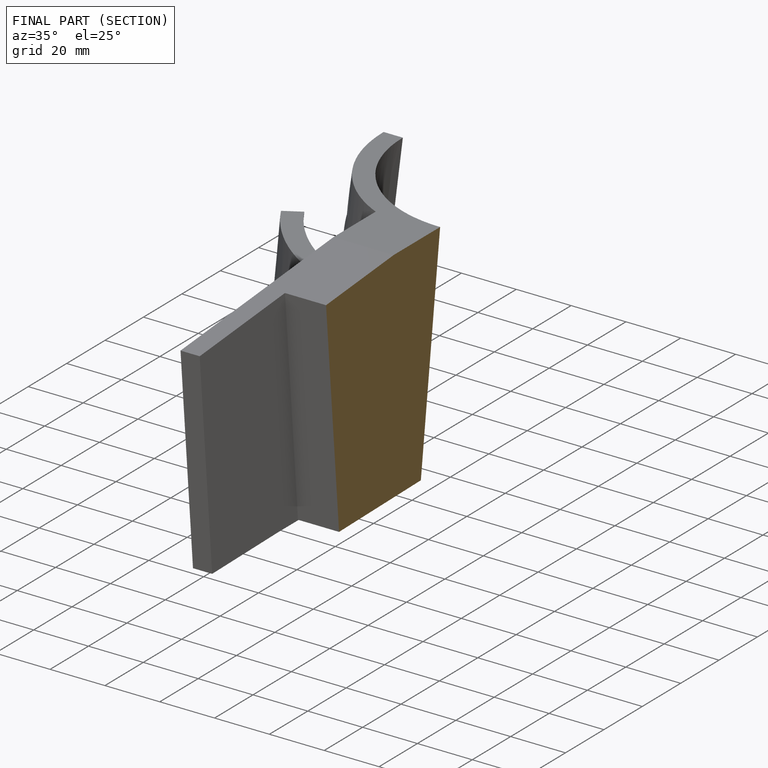
[diagram: finished part — half-section view (interior)]
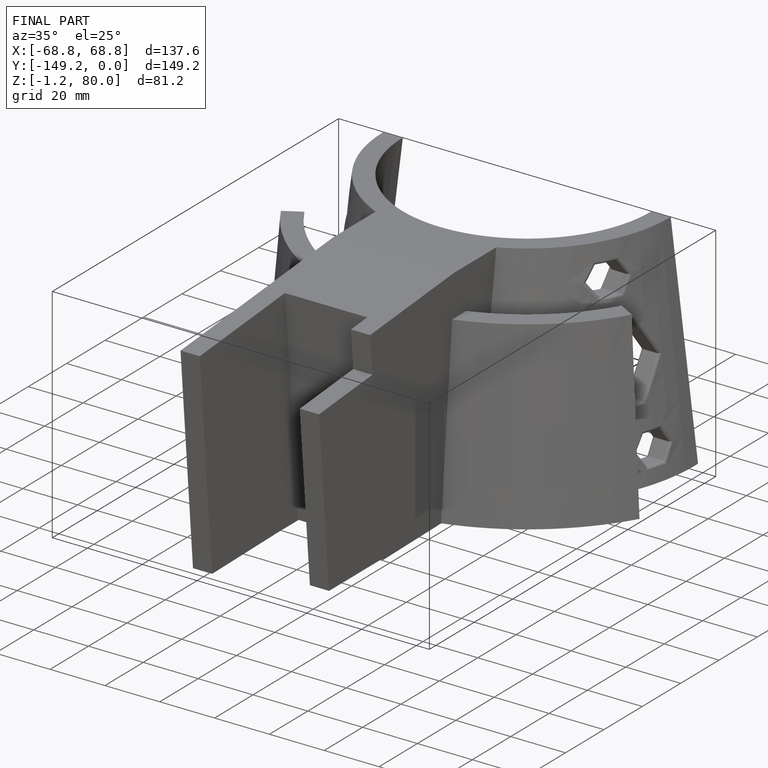
[diagram: finished part — iso view with bounding-box wireframe]
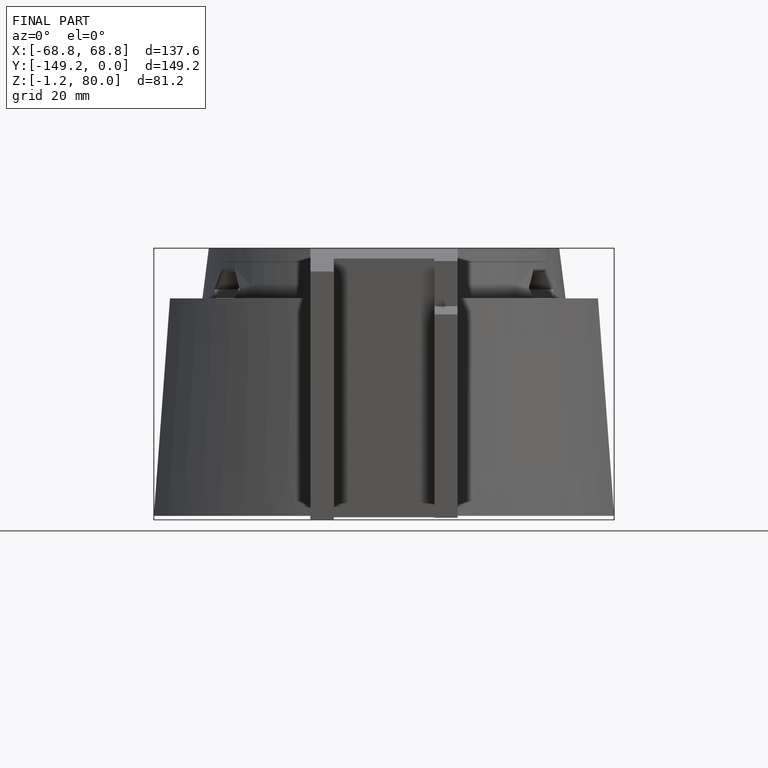
[diagram: finished part — front view with bounding-box wireframe]
